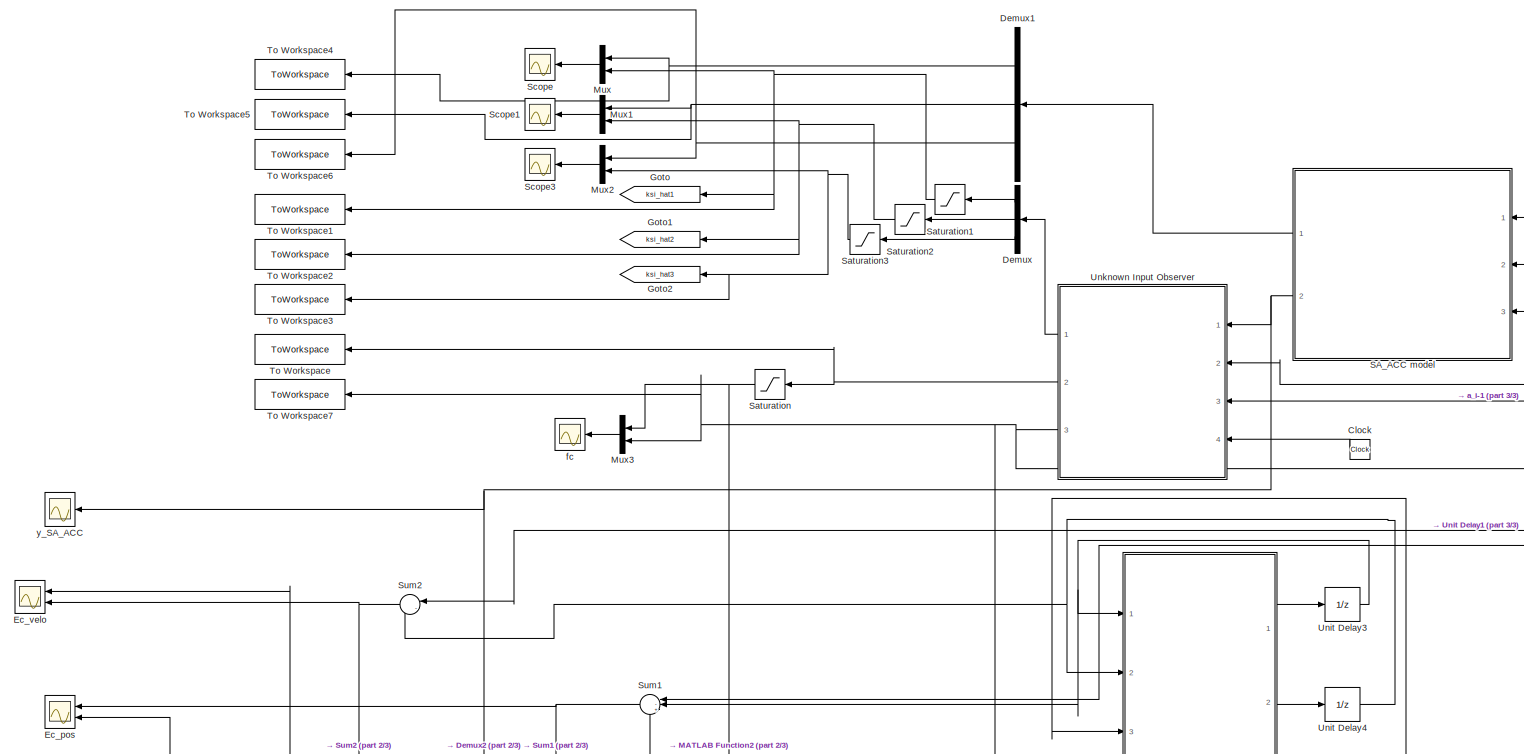
[diagram: root canvas - part 1/3, full width, top band]
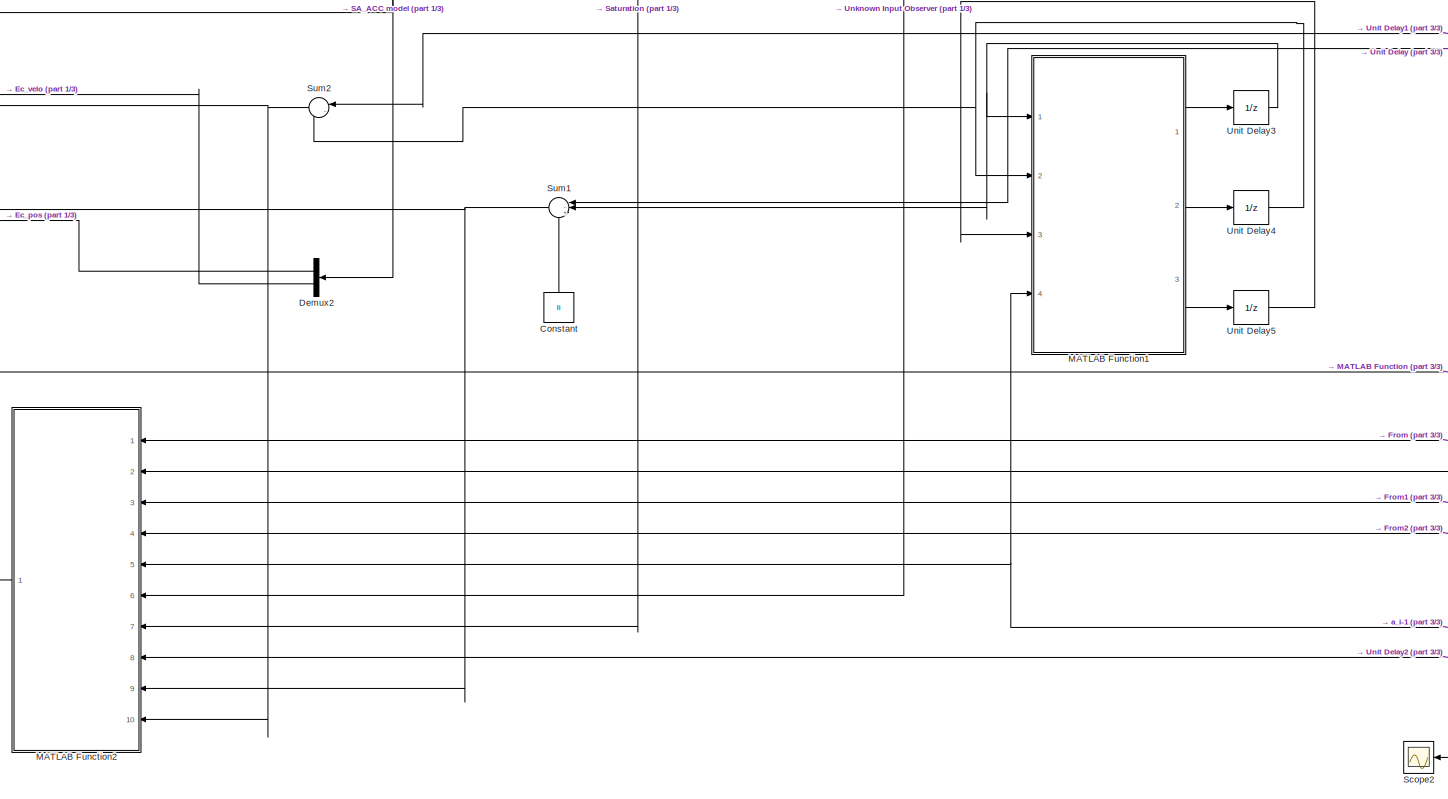
[diagram: root canvas - part 2/3, bottom center region]
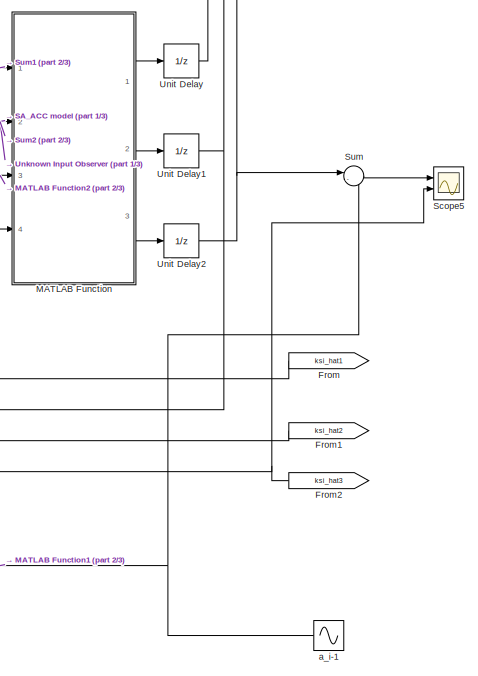
[diagram: root canvas - part 3/3, bottom right region]
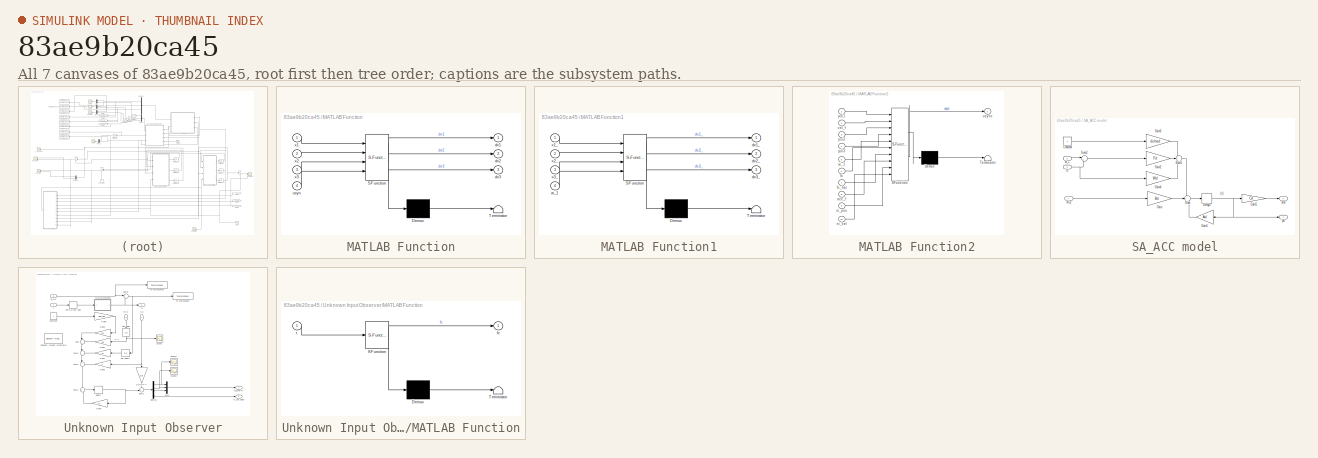
[diagram: thumbnail index - all 7 canvases of the model, root first then tree order]
MODEL slx_83ae9b20ca45
KIND model
CONFIG AbsTol = auto
CONFIG EnableMultiTasking = off
CONFIG FixedStep = 0.01
CONFIG MaxStep = auto
CONFIG MinStep = auto
CONFIG PreLoadFcn = li = 5;\nLi = 7.3;\nh = 0.5;\nk1 = -0.8;\nk2 = 2.5;\nTs = 0.01;
CONFIG RelTol = 1e-3
CONFIG SampleTimeConstraint = Unconstrained
CONFIG SolverName = FixedStepDiscrete
CONFIG StartTime = 0.0
CONFIG StopTime = 20
BLOCK [Clock] Clock
  NameLocation = top
BLOCK [Constant] Constant
  NameLocation = right
  Value = li
BLOCK [Demux] Demux
  NameLocation = top
  Outputs = 3
  Ports = [1, 3]
BLOCK [Demux] Demux1
  NameLocation = top
  Outputs = 3
  Ports = [1, 3]
BLOCK [Demux] Demux2
  NameLocation = top
  Outputs = 2
  Ports = [1, 2]
BLOCK [Scope] Ec_pos
  Floating = off
  NameLocation = top
  NumInputPorts = 2
  Ports = [2]
  ScopeSpecificationString = Simulink.scopes.TimeScopeBlockCfg('CurrentConfiguration', extmgr.ConfigurationSet(extmgr.Configuration('Core','General UI',true),extmgr.Configuration('Core','Source UI',true),extmgr.Configuration('Sources','WiredSimulink',true,'DataLoggingVariableName','ScopeData1'),extmgr.Configuration('Visuals','Time Domain',true,'SerializedDisplays',{struct('MinYLimReal','-83.92582','MaxYLimReal','19.45731','YL...<+1453ch>
BLOCK [Scope] Ec_velo
  Floating = off
  NameLocation = top
  NumInputPorts = 2
  Ports = [2]
  ScopeSpecificationString = Simulink.scopes.TimeScopeBlockCfg('CurrentConfiguration', extmgr.ConfigurationSet(extmgr.Configuration('Core','General UI',true),extmgr.Configuration('Core','Source UI',true),extmgr.Configuration('Sources','WiredSimulink',true,'DataLoggingVariableName','ScopeData2'),extmgr.Configuration('Visuals','Time Domain',true,'SerializedDisplays',{struct('MinYLimReal','-10.97067','MaxYLimReal','47.97901','YL...<+1453ch>
BLOCK [From] From
  GotoTag = ksi_hat1
BLOCK [From] From1
  GotoTag = ksi_hat2
BLOCK [From] From2
  GotoTag = ksi_hat3
BLOCK [Goto] Goto
  GotoTag = ksi_hat1
BLOCK [Goto] Goto1
  GotoTag = ksi_hat2
BLOCK [Goto] Goto2
  GotoTag = ksi_hat3
BLOCK [SubSystem] MATLAB Function
  ErrorFcn = Stateflow.Translate.translate
  PermitHierarchicalResolution = ExplicitOnly
  Ports = [4, 3]
  RequestExecContextInheritance = off
  SFBlockType = MATLAB Function
  TreatAsAtomicUnit = on
BLOCK [Demux] MATLAB Function/ Demux 
  Outputs = 1
  Ports = [1, 1]
BLOCK [S-Function] MATLAB Function/ SFunction 
  EnableBusSupport = on
  FunctionName = sf_sfun
  PortCounts = [4 4]
  Ports = [4, 4]
  SFcnIsStateOwnerBlock = off
  SFunctionDeploymentMode = off
  Tag = Stateflow S-Function 2
BLOCK [Terminator] MATLAB Function/ Terminator 
BLOCK [Outport] MATLAB Function/dx1
  VectorParamsAs1DForOutWhenUnconnected = off
BLOCK [Outport] MATLAB Function/dx2
  Port = 2
  VectorParamsAs1DForOutWhenUnconnected = off
BLOCK [Outport] MATLAB Function/dx3
  Port = 3
  VectorParamsAs1DForOutWhenUnconnected = off
BLOCK [Inport] MATLAB Function/usyn
  Port = 4
BLOCK [Inport] MATLAB Function/x1
BLOCK [Inport] MATLAB Function/x2
  Port = 2
BLOCK [Inport] MATLAB Function/x3
  Port = 3
BLOCK [SubSystem] MATLAB Function1
  ErrorFcn = Stateflow.Translate.translate
  PermitHierarchicalResolution = ExplicitOnly
  Ports = [4, 3]
  RequestExecContextInheritance = off
  SFBlockType = MATLAB Function
  TreatAsAtomicUnit = on
BLOCK [Demux] MATLAB Function1/ Demux 
  Outputs = 1
  Ports = [1, 1]
BLOCK [S-Function] MATLAB Function1/ SFunction 
  EnableBusSupport = on
  FunctionName = sf_sfun
  PortCounts = [4 4]
  Ports = [4, 4]
  SFcnIsStateOwnerBlock = off
  SFunctionDeploymentMode = off
  Tag = Stateflow S-Function 1
BLOCK [Terminator] MATLAB Function1/ Terminator 
BLOCK [Inport] MATLAB Function1/ai_1
  Port = 4
BLOCK [Outport] MATLAB Function1/dx1_
  VectorParamsAs1DForOutWhenUnconnected = off
BLOCK [Outport] MATLAB Function1/dx2_
  Port = 2
  VectorParamsAs1DForOutWhenUnconnected = off
BLOCK [Outport] MATLAB Function1/dx3_
  Port = 3
  VectorParamsAs1DForOutWhenUnconnected = off
BLOCK [Inport] MATLAB Function1/x1_
BLOCK [Inport] MATLAB Function1/x2_
  Port = 2
BLOCK [Inport] MATLAB Function1/x3_
  Port = 3
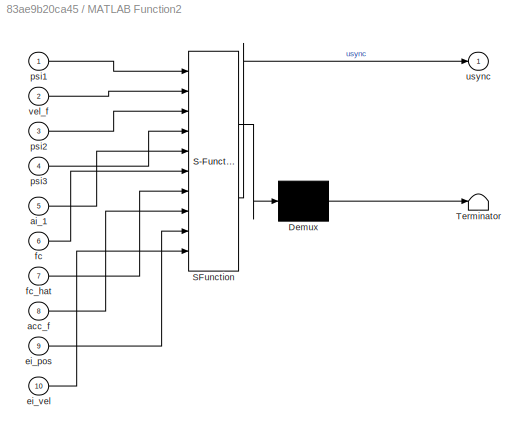
BLOCK [SubSystem] MATLAB Function2
  ErrorFcn = Stateflow.Translate.translate
  NameLocation = top
  PermitHierarchicalResolution = ExplicitOnly
  Ports = [10, 1]
  RequestExecContextInheritance = off
  SFBlockType = MATLAB Function
  TreatAsAtomicUnit = on
BLOCK [Demux] MATLAB Function2/ Demux 
  Outputs = 1
  Ports = [1, 1]
BLOCK [S-Function] MATLAB Function2/ SFunction 
  EnableBusSupport = on
  FunctionName = sf_sfun
  PortCounts = [10 2]
  Ports = [10, 2]
  SFcnIsStateOwnerBlock = off
  SFunctionDeploymentMode = off
  Tag = Stateflow S-Function 3
BLOCK [Terminator] MATLAB Function2/ Terminator 
BLOCK [Inport] MATLAB Function2/acc_f
  Port = 8
BLOCK [Inport] MATLAB Function2/ai_1
  Port = 5
BLOCK [Inport] MATLAB Function2/ei_pos
  Port = 9
BLOCK [Inport] MATLAB Function2/ei_vel
  Port = 10
BLOCK [Inport] MATLAB Function2/fc
  Port = 6
BLOCK [Inport] MATLAB Function2/fc_hat
  Port = 7
BLOCK [Inport] MATLAB Function2/psi1
BLOCK [Inport] MATLAB Function2/psi2
  Port = 3
BLOCK [Inport] MATLAB Function2/psi3
  Port = 4
BLOCK [Outport] MATLAB Function2/usync
  VectorParamsAs1DForOutWhenUnconnected = off
BLOCK [Inport] MATLAB Function2/vel_f
  Port = 2
BLOCK [Mux] Mux
  DisplayOption = bar
  Inputs = 2
  NameLocation = top
  Ports = [2, 1]
BLOCK [Mux] Mux1
  DisplayOption = bar
  Inputs = 2
  NameLocation = top
  Ports = [2, 1]
BLOCK [Mux] Mux2
  DisplayOption = bar
  Inputs = 2
  NameLocation = top
  Ports = [2, 1]
BLOCK [Mux] Mux3
  DisplayOption = bar
  Inputs = 2
  NameLocation = top
  Ports = [2, 1]
BLOCK [SubSystem] SA_ACC model
  Ports = [3, 2]
  RequestExecContextInheritance = off
BLOCK [Constant] SA_ACC model/Constant
BLOCK [Delay] SA_ACC model/Delay3
  DelayLength = 1
  InitialCondition = [5;10;0]
  InputPortMap = u0
  Ports = [1, 1]
BLOCK [Gain] SA_ACC model/Gain
  Gain = Bd
  Multiplication = Matrix(K*u) (u vector)
BLOCK [Gain] SA_ACC model/Gain1
  Gain = Ad
  Multiplication = Matrix(K*u) (u vector)
  NameLocation = top
BLOCK [Gain] SA_ACC model/Gain2
  Gain = Fd
  Multiplication = Matrix(K*u) (u vector)
BLOCK [Gain] SA_ACC model/Gain3
  Gain = deltad
  Multiplication = Matrix(K*u) (u vector)
BLOCK [Gain] SA_ACC model/Gain4
  Gain = Wd
  Multiplication = Matrix(K*u) (u vector)
BLOCK [Gain] SA_ACC model/Gain5
  Gain = Cd
  Multiplication = Matrix(K*u) (u vector)
BLOCK [Sum] SA_ACC model/Sum
  Inputs = +++
  Ports = [3, 1]
BLOCK [Sum] SA_ACC model/Sum1
  Inputs = ++-
  Ports = [3, 1]
BLOCK [Sum] SA_ACC model/Sum2
  Inputs = |++
  Ports = [2, 1]
BLOCK [Inport] SA_ACC model/ai_1
  NameLocation = top
  Port = 2
BLOCK [Inport] SA_ACC model/fc
  NameLocation = top
  Port = 3
BLOCK [Outport] SA_ACC model/psi
  VectorParamsAs1DForOutWhenUnconnected = off
BLOCK [Inport] SA_ACC model/xf(2)
  NameLocation = top
BLOCK [Outport] SA_ACC model/y(k)
  Port = 2
  VectorParamsAs1DForOutWhenUnconnected = off
BLOCK [Saturate] Saturation
  LowerLimit = -10
  UpperLimit = 15
BLOCK [Saturate] Saturation1
  LowerLimit = -20
  UpperLimit = 100
BLOCK [Saturate] Saturation2
  LowerLimit = -20
  UpperLimit = 20
BLOCK [Saturate] Saturation3
  LowerLimit = -20
  UpperLimit = 20
BLOCK [Scope] Scope
  Floating = off
  NameLocation = top
  NumInputPorts = 1
  Ports = [1]
  ScopeSpecificationString = Simulink.scopes.TimeScopeBlockCfg('CurrentConfiguration', extmgr.ConfigurationSet(extmgr.Configuration('Core','General UI',true),extmgr.Configuration('Core','Source UI',true),extmgr.Configuration('Sources','WiredSimulink',true,'DataLoggingVariableName','ScopeData1'),extmgr.Configuration('Visuals','Time Domain',true,'SerializedDisplays',{struct('MinYLimReal','1.38405','MaxYLimReal','12.54231','YLab...<+1476ch>
BLOCK [Scope] Scope1
  Floating = off
  NameLocation = top
  NumInputPorts = 1
  Ports = [1]
  ScopeSpecificationString = Simulink.scopes.TimeScopeBlockCfg('CurrentConfiguration', extmgr.ConfigurationSet(extmgr.Configuration('Core','General UI',true),extmgr.Configuration('Core','Source UI',true),extmgr.Configuration('Sources','WiredSimulink',true,'DataLoggingVariableName','ScopeData3'),extmgr.Configuration('Visuals','Time Domain',true,'SerializedDisplays',{struct('MinYLimReal','-8.03313','MaxYLimReal','15.65588','YLa...<+1460ch>
BLOCK [Scope] Scope2
  Floating = off
  NameLocation = top
  NumInputPorts = 1
  Ports = [1]
  ScopeSpecificationString = Simulink.scopes.TimeScopeBlockCfg('CurrentConfiguration', extmgr.ConfigurationSet(extmgr.Configuration('Core','General UI',true),extmgr.Configuration('Core','Source UI',true),extmgr.Configuration('Sources','WiredSimulink',true,'DataLoggingVariableName','ScopeData2'),extmgr.Configuration('Visuals','Time Domain',true,'SerializedDisplays',{struct('MinYLimReal','-11.12279','MaxYLimReal','71.73274','YL...<+1454ch>
BLOCK [Scope] Scope3
  Floating = off
  NameLocation = top
  NumInputPorts = 1
  Ports = [1]
  ScopeSpecificationString = Simulink.scopes.TimeScopeBlockCfg('CurrentConfiguration', extmgr.ConfigurationSet(extmgr.Configuration('Core','General UI',true),extmgr.Configuration('Core','Source UI',true),extmgr.Configuration('Sources','WiredSimulink',true,'DataLoggingVariableName','ScopeData4'),extmgr.Configuration('Visuals','Time Domain',true,'SerializedDisplays',{struct('MinYLimReal','-25.00000','MaxYLimReal','25.00000','YL...<+1461ch>
BLOCK [Scope] Scope5
  Floating = off
  NumInputPorts = 2
  Ports = [2]
  ScopeSpecificationString = Simulink.scopes.TimeScopeBlockCfg('CurrentConfiguration', extmgr.ConfigurationSet(extmgr.Configuration('Core','General UI',true),extmgr.Configuration('Core','Source UI',true),extmgr.Configuration('Sources','WiredSimulink',true,'DataLoggingVariableName','ScopeData1'),extmgr.Configuration('Visuals','Time Domain',true,'SerializedDisplays',{struct('MinYLimReal','-25.00000','MaxYLimReal','25.00000','YL...<+1440ch>
BLOCK [Sum] Sum
  Inputs = |-+
  Ports = [2, 1]
BLOCK [Sum] Sum1
  Inputs = |-+-
  NameLocation = top
  Ports = [3, 1]
BLOCK [Sum] Sum2
  Inputs = |-+
  NameLocation = top
  Ports = [2, 1]
BLOCK [ToWorkspace] To Workspace
  FixptAsFi = on
  MaxDataPoints = inf
  NameLocation = top
  Ports = [1]
  SampleTime = -1
  SaveFormat = Timeseries
  VariableName = fc_est
BLOCK [ToWorkspace] To Workspace1
  FixptAsFi = on
  MaxDataPoints = inf
  NameLocation = top
  Ports = [1]
  SampleTime = -1
  SaveFormat = Timeseries
  VariableName = psi_est_1
BLOCK [ToWorkspace] To Workspace2
  FixptAsFi = on
  MaxDataPoints = inf
  NameLocation = top
  Ports = [1]
  SampleTime = -1
  SaveFormat = Timeseries
  VariableName = psi_est_2
BLOCK [ToWorkspace] To Workspace3
  FixptAsFi = on
  MaxDataPoints = inf
  NameLocation = top
  Ports = [1]
  SampleTime = -1
  SaveFormat = Timeseries
  VariableName = psi_est_3
BLOCK [ToWorkspace] To Workspace4
  FixptAsFi = on
  MaxDataPoints = inf
  NameLocation = top
  Ports = [1]
  SampleTime = -1
  SaveFormat = Timeseries
  VariableName = psi_1
BLOCK [ToWorkspace] To Workspace5
  FixptAsFi = on
  MaxDataPoints = inf
  NameLocation = top
  Ports = [1]
  SampleTime = -1
  SaveFormat = Timeseries
  VariableName = psi_2
BLOCK [ToWorkspace] To Workspace6
  FixptAsFi = on
  MaxDataPoints = inf
  NameLocation = top
  Ports = [1]
  SampleTime = -1
  SaveFormat = Timeseries
  VariableName = psi_3
BLOCK [ToWorkspace] To Workspace7
  FixptAsFi = on
  MaxDataPoints = inf
  NameLocation = top
  Ports = [1]
  SampleTime = -1
  SaveFormat = Timeseries
  VariableName = fc
BLOCK [UnitDelay] Unit Delay
  HasFrameUpgradeWarning = on
  SampleTime = -1
BLOCK [UnitDelay] Unit Delay1
  HasFrameUpgradeWarning = on
  SampleTime = -1
BLOCK [UnitDelay] Unit Delay2
  HasFrameUpgradeWarning = on
  SampleTime = -1
BLOCK [UnitDelay] Unit Delay3
  HasFrameUpgradeWarning = on
  InitialCondition = 10
  SampleTime = -1
BLOCK [UnitDelay] Unit Delay4
  HasFrameUpgradeWarning = on
  InitialCondition = 10
  SampleTime = -1
BLOCK [UnitDelay] Unit Delay5
  HasFrameUpgradeWarning = on
  SampleTime = -1
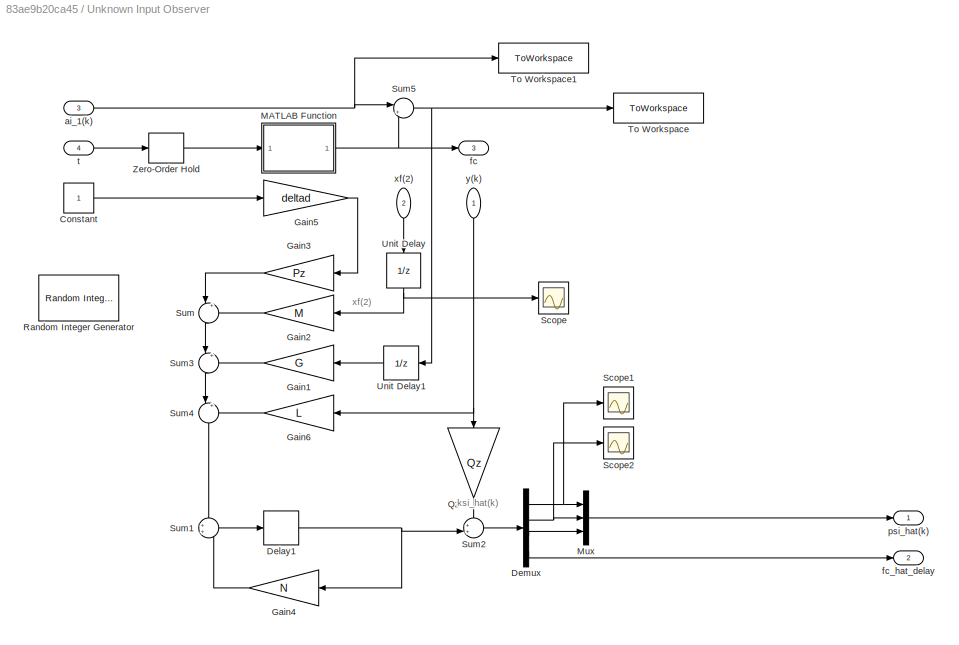
BLOCK [SubSystem] Unknown Input Observer
  NameLocation = top
  Ports = [4, 3]
  RequestExecContextInheritance = off
BLOCK [Constant] Unknown Input Observer/Constant
BLOCK [Delay] Unknown Input Observer/Delay1
  DelayLength = 1
  InitialCondition = [0;0;0;0]
  InputPortMap = u0
  Ports = [1, 1]
BLOCK [Demux] Unknown Input Observer/Demux
  Ports = [1, 4]
BLOCK [Gain] Unknown Input Observer/Gain1
  Gain = G
  Multiplication = Matrix(K*u) (u vector)
  NameLocation = top
BLOCK [Gain] Unknown Input Observer/Gain2
  Gain = M
  Multiplication = Matrix(K*u) (u vector)
  NameLocation = top
BLOCK [Gain] Unknown Input Observer/Gain3
  Gain = Pz
  Multiplication = Matrix(K*u) (u vector)
  NameLocation = top
BLOCK [Gain] Unknown Input Observer/Gain4
  Gain = N
  Multiplication = Matrix(K*u) (u vector)
  NameLocation = top
BLOCK [Gain] Unknown Input Observer/Gain5
  Gain = deltad
  Multiplication = Matrix(K*u) (u vector)
BLOCK [Gain] Unknown Input Observer/Gain6
  Gain = L
  Multiplication = Matrix(K*u) (u vector)
  NameLocation = top
BLOCK [SubSystem] Unknown Input Observer/MATLAB Function
  ErrorFcn = Stateflow.Translate.translate
  PermitHierarchicalResolution = ExplicitOnly
  Ports = [1, 1]
  RequestExecContextInheritance = off
  SFBlockType = MATLAB Function
  TreatAsAtomicUnit = on
BLOCK [Demux] Unknown Input Observer/MATLAB Function/ Demux 
  Outputs = 1
  Ports = [1, 1]
BLOCK [S-Function] Unknown Input Observer/MATLAB Function/ SFunction 
  EnableBusSupport = on
  FunctionName = sf_sfun
  PortCounts = [1 2]
  Ports = [1, 2]
  SFcnIsStateOwnerBlock = off
  SFunctionDeploymentMode = off
  Tag = Stateflow S-Function 4
BLOCK [Terminator] Unknown Input Observer/MATLAB Function/ Terminator 
BLOCK [Outport] Unknown Input Observer/MATLAB Function/fc
  VectorParamsAs1DForOutWhenUnconnected = off
BLOCK [Inport] Unknown Input Observer/MATLAB Function/t
BLOCK [Mux] Unknown Input Observer/Mux
  DisplayOption = bar
  Inputs = 3
  Ports = [3, 1]
BLOCK [Gain] Unknown Input Observer/Qz
  Gain = Qz
  Multiplication = Matrix(K*u) (u vector)
  NameLocation = left
BLOCK [Reference] Unknown Input Observer/Random Integer Generator  REF=commrandsrc3/Random Integer
Generator
  Commented = on
  Ports = [0, 1]
  SourceBlock = commrandsrc3/Random Integer\nGenerator
  SourceProductBaseCode = CM
  SourceType = Random Integer Generator
BLOCK [Scope] Unknown Input Observer/Scope
  Floating = off
  NumInputPorts = 1
  Ports = [1]
  ScopeSpecificationString = Simulink.scopes.TimeScopeBlockCfg('CurrentConfiguration', extmgr.ConfigurationSet(extmgr.Configuration('Core','General UI',true),extmgr.Configuration('Core','Source UI',true),extmgr.Configuration('Sources','WiredSimulink',true,'DataLoggingVariableName','ScopeData1'),extmgr.Configuration('Visuals','Time Domain',true,'SerializedDisplays',{struct('MinYLimReal','-1.00000','MaxYLimReal','1.00000','YLab...<+1394ch>
BLOCK [Scope] Unknown Input Observer/Scope1
  Floating = off
  NumInputPorts = 1
  Ports = [1]
  ScopeSpecificationString = Simulink.scopes.TimeScopeBlockCfg('CurrentConfiguration', extmgr.ConfigurationSet(extmgr.Configuration('Core','General UI',true),extmgr.Configuration('Core','Source UI',true),extmgr.Configuration('Sources','WiredSimulink',true,'DataLoggingVariableName','ScopeData2'),extmgr.Configuration('Visuals','Time Domain',true,'SerializedDisplays',{struct('MinYLimReal','-6.18008','MaxYLimReal','10.60947','YLa...<+1428ch>
BLOCK [Scope] Unknown Input Observer/Scope2
  Floating = off
  NumInputPorts = 1
  Ports = [1]
  ScopeSpecificationString = Simulink.scopes.TimeScopeBlockCfg('CurrentConfiguration', extmgr.ConfigurationSet(extmgr.Configuration('Core','General UI',true),extmgr.Configuration('Core','Source UI',true),extmgr.Configuration('Sources','WiredSimulink',true,'DataLoggingVariableName','ScopeData3'),extmgr.Configuration('Visuals','Time Domain',true,'SerializedDisplays',{struct('MinYLimReal','-6.67873','MaxYLimReal','15.56931','YLa...<+1395ch>
BLOCK [Sum] Unknown Input Observer/Sum
  Inputs = |++
  NameLocation = left
  Ports = [2, 1]
BLOCK [Sum] Unknown Input Observer/Sum1
  Ports = [2, 1]
BLOCK [Sum] Unknown Input Observer/Sum2
  Inputs = ++|
  Ports = [2, 1]
BLOCK [Sum] Unknown Input Observer/Sum3
  Inputs = |++
  NameLocation = left
  Ports = [2, 1]
BLOCK [Sum] Unknown Input Observer/Sum4
  Inputs = |++
  NameLocation = left
  Ports = [2, 1]
BLOCK [Sum] Unknown Input Observer/Sum5
  Inputs = |++
  Ports = [2, 1]
BLOCK [ToWorkspace] Unknown Input Observer/To Workspace
  FixptAsFi = on
  MaxDataPoints = inf
  Ports = [1]
  SampleTime = -1
  SaveFormat = Timeseries
  VariableName = mu
BLOCK [ToWorkspace] Unknown Input Observer/To Workspace1
  FixptAsFi = on
  MaxDataPoints = inf
  Ports = [1]
  SampleTime = -1
  SaveFormat = Timeseries
  VariableName = a_pre
BLOCK [UnitDelay] Unknown Input Observer/Unit Delay
  HasFrameUpgradeWarning = on
  NameLocation = left
  SampleTime = -1
BLOCK [UnitDelay] Unknown Input Observer/Unit Delay1
  HasFrameUpgradeWarning = on
  NameLocation = top
  SampleTime = -1
BLOCK [ZeroOrderHold] Unknown Input Observer/Zero-Order Hold
  SampleTime = -1
BLOCK [Inport] Unknown Input Observer/ai_1(k)
  NameLocation = top
  Port = 3
BLOCK [Outport] Unknown Input Observer/fc
  Port = 3
  VectorParamsAs1DForOutWhenUnconnected = off
BLOCK [Outport] Unknown Input Observer/fc_hat_delay
  Port = 2
  VectorParamsAs1DForOutWhenUnconnected = off
BLOCK [Outport] Unknown Input Observer/psi_hat(k)
  VectorParamsAs1DForOutWhenUnconnected = off
BLOCK [Inport] Unknown Input Observer/t
  Port = 4
BLOCK [Inport] Unknown Input Observer/xf(2)
  NameLocation = left
  Port = 2
BLOCK [Inport] Unknown Input Observer/y(k)
  NameLocation = left
BLOCK [Sin] a_i-1
  Amplitude = 3
  Frequency = 2*pi/10
  NameLocation = top
  Ports = [0, 1]
  SampleTime = Ts
BLOCK [Scope] fc
  Floating = off
  NameLocation = top
  NumInputPorts = 1
  Ports = [1]
  ScopeSpecificationString = Simulink.scopes.TimeScopeBlockCfg('CurrentConfiguration', extmgr.ConfigurationSet(extmgr.Configuration('Core','General UI',true),extmgr.Configuration('Core','Source UI',true),extmgr.Configuration('Sources','WiredSimulink',true,'DataLoggingVariableName','ScopeData5'),extmgr.Configuration('Visuals','Time Domain',true,'SerializedDisplays',{struct('MinYLimReal','-13.125','MaxYLimReal','18.125','YLabel...<+1464ch>
BLOCK [Scope] y_SA_ACC
  Floating = off
  NameLocation = top
  NumInputPorts = 1
  Ports = [1]
  ScopeSpecificationString = Simulink.scopes.TimeScopeBlockCfg('CurrentConfiguration', extmgr.ConfigurationSet(extmgr.Configuration('Core','General UI',true),extmgr.Configuration('Core','Source UI',true),extmgr.Configuration('Sources','WiredSimulink',true,'DataLoggingVariableName','ScopeData4'),extmgr.Configuration('Visuals','Time Domain',true,'SerializedDisplays',{struct('MinYLimReal','-6.96016','MaxYLimReal','11.88446','YLa...<+1471ch>
ANNOTATION SA_ACC model: x(k)
ANNOTATION Unknown Input Observer: ksi_hat(k)
ANNOTATION Unknown Input Observer: xf(2)
LINE Clock:1 -> Unknown Input Observer:4
LINE Constant:1 -> Sum1:3
NET Demux1:1 -> Mux:1, To Workspace4:1
NET Demux1:2 -> Mux1:1, To Workspace5:1
NET Demux1:3 -> Mux2:1, To Workspace6:1
LINE Demux2:1 -> Ec_pos:2
LINE Demux2:2 -> Ec_velo:1
LINE Demux:1 -> Saturation1:1
LINE Demux:2 -> Saturation2:1
LINE Demux:3 -> Saturation3:1
LINE From1:1 -> MATLAB Function2:3
NET From2:1 -> MATLAB Function2:4, Scope5:2
LINE From:1 -> MATLAB Function2:1
LINE MATLAB Function1:1 -> Unit Delay3:1
LINE MATLAB Function1:2 -> Unit Delay4:1
LINE MATLAB Function1:3 -> Unit Delay5:1
NET MATLAB Function2:1 -> MATLAB Function:4, Scope2:1
LINE MATLAB Function:1 -> Unit Delay:1
LINE MATLAB Function:2 -> Unit Delay1:1
LINE MATLAB Function:3 -> Unit Delay2:1
LINE Mux1:1 -> Scope1:1
LINE Mux2:1 -> Scope3:1
LINE Mux3:1 -> fc:1
LINE Mux:1 -> Scope:1
LINE SA_ACC model/Constant:1 -> SA_ACC model/Gain3:1
NET SA_ACC model/Delay3:1 -> SA_ACC model/Gain1:1, SA_ACC model/Gain5:1, SA_ACC model/psi:1
LINE SA_ACC model/Gain1:1 -> SA_ACC model/Sum:3
LINE SA_ACC model/Gain2:1 -> SA_ACC model/Sum1:2
LINE SA_ACC model/Gain3:1 -> SA_ACC model/Sum1:1
LINE SA_ACC model/Gain4:1 -> SA_ACC model/Sum1:3
LINE SA_ACC model/Gain5:1 -> SA_ACC model/y(k):1
LINE SA_ACC model/Gain:1 -> SA_ACC model/Sum:2
LINE SA_ACC model/Sum1:1 -> SA_ACC model/Sum:1
LINE SA_ACC model/Sum2:1 -> SA_ACC model/Gain2:1
LINE SA_ACC model/Sum:1 -> SA_ACC model/Delay3:1
LINE SA_ACC model/ai_1:1 -> SA_ACC model/Sum2:1
NET SA_ACC model/fc:1 -> SA_ACC model/Gain4:1, SA_ACC model/Sum2:2
LINE SA_ACC model/xf(2):1 -> SA_ACC model/Gain:1
LINE SA_ACC model:1 -> Demux1:1
NET SA_ACC model:2 -> Demux2:1, Unknown Input Observer:1, y_SA_ACC:1
NET Saturation1:1 -> Goto:1, Mux:2, To Workspace1:1
NET Saturation2:1 -> Goto1:1, Mux1:2, To Workspace2:1
NET Saturation3:1 -> Goto2:1, Mux2:2, To Workspace3:1
NET Saturation:1 -> MATLAB Function2:7, Mux3:1
NET Sum1:1 -> Ec_pos:1, MATLAB Function2:9
NET Sum2:1 -> Ec_velo:2, MATLAB Function2:10
LINE Sum:1 -> Scope5:1
NET Unit Delay1:1 -> MATLAB Function2:2, MATLAB Function:2, SA_ACC model:1, Sum2:1, Unknown Input Observer:2
NET Unit Delay2:1 -> MATLAB Function2:8, MATLAB Function:3, Sum:1
NET Unit Delay3:1 -> MATLAB Function1:1, Sum1:2
NET Unit Delay4:1 -> MATLAB Function1:2, Sum2:2
LINE Unit Delay5:1 -> MATLAB Function1:3
NET Unit Delay:1 -> MATLAB Function:1, Sum1:1
LINE Unknown Input Observer/Constant:1 -> Unknown Input Observer/Gain5:1
NET Unknown Input Observer/Delay1:1 -> Unknown Input Observer/Gain4:1, Unknown Input Observer/Sum2:2
NET Unknown Input Observer/Demux:1 -> Unknown Input Observer/Mux:1, Unknown Input Observer/Scope1:1
NET Unknown Input Observer/Demux:2 -> Unknown Input Observer/Mux:2, Unknown Input Observer/Scope2:1
LINE Unknown Input Observer/Demux:3 -> Unknown Input Observer/Mux:3
LINE Unknown Input Observer/Demux:4 -> Unknown Input Observer/fc_hat_delay:1
LINE Unknown Input Observer/Gain1:1 -> Unknown Input Observer/Sum3:2
LINE Unknown Input Observer/Gain2:1 -> Unknown Input Observer/Sum:2
LINE Unknown Input Observer/Gain3:1 -> Unknown Input Observer/Sum:1
LINE Unknown Input Observer/Gain4:1 -> Unknown Input Observer/Sum1:2
LINE Unknown Input Observer/Gain5:1 -> Unknown Input Observer/Gain3:1
LINE Unknown Input Observer/Gain6:1 -> Unknown Input Observer/Sum4:2
NET Unknown Input Observer/MATLAB Function:1 -> Unknown Input Observer/Sum5:2, Unknown Input Observer/fc:1
LINE Unknown Input Observer/Mux:1 -> Unknown Input Observer/psi_hat(k):1
LINE Unknown Input Observer/Qz:1 -> Unknown Input Observer/Sum2:1
LINE Unknown Input Observer/Sum1:1 -> Unknown Input Observer/Delay1:1
LINE Unknown Input Observer/Sum2:1 -> Unknown Input Observer/Demux:1
LINE Unknown Input Observer/Sum3:1 -> Unknown Input Observer/Sum4:1
LINE Unknown Input Observer/Sum4:1 -> Unknown Input Observer/Sum1:1
NET Unknown Input Observer/Sum5:1 -> Unknown Input Observer/To Workspace:1, Unknown Input Observer/Unit Delay1:1
LINE Unknown Input Observer/Sum:1 -> Unknown Input Observer/Sum3:1
LINE Unknown Input Observer/Unit Delay1:1 -> Unknown Input Observer/Gain1:1
NET Unknown Input Observer/Unit Delay:1 -> Unknown Input Observer/Gain2:1, Unknown Input Observer/Scope:1
LINE Unknown Input Observer/Zero-Order Hold:1 -> Unknown Input Observer/MATLAB Function:1
NET Unknown Input Observer/ai_1(k):1 -> Unknown Input Observer/Sum5:1, Unknown Input Observer/To Workspace1:1
LINE Unknown Input Observer/t:1 -> Unknown Input Observer/Zero-Order Hold:1
LINE Unknown Input Observer/xf(2):1 -> Unknown Input Observer/Unit Delay:1
NET Unknown Input Observer/y(k):1 -> Unknown Input Observer/Gain6:1, Unknown Input Observer/Qz:1
LINE Unknown Input Observer:1 -> Demux:1
NET Unknown Input Observer:2 -> Saturation:1, To Workspace:1
NET Unknown Input Observer:3 -> MATLAB Function2:6, Mux3:2, SA_ACC model:3, To Workspace7:1
NET a_i-1:1 -> MATLAB Function1:4, MATLAB Function2:5, SA_ACC model:2, Sum:2, Unknown Input Observer:3
note: NET lines group one-source signal fan-out (src -> all destinations, sorted); 1:1 wires keep LINE
CHART MATLAB Function1 states=1 transitions=1
  STATE_LABEL 'eML_blk_kernel()'
  STATE_LABEL 'SCRIPT:\nfunction [dx1_,dx2_,dx3_] = preceeding(x1_,x2_,x3_,ai_1)\n\n\nTs = 1/100;\n\nAi_ = [1 Ts 0;\n       0 1 0;\n       0 0 1];\n\n\n\ndx1_ = Ai_(1,:)*[x1_;x2_;x3_];\ndx2_ = Ai_(2,:)*[x1_;x2_;x3_]+Ts*ai_1;\ndx3_ = Ai_(3,:)*[x1_;x2_;x3_] ;\n\n'
CHART MATLAB Function states=1 transitions=1
  STATE_LABEL 'eML_blk_kernel()'
  STATE_LABEL 'SCRIPT:\nfunction [dx1,dx2,dx3] = following(x1,x2,x3,usyn)\n\n\nTs = 1/100;\ntau = 0.4;\n\nAi = [1 Ts 0;0 1 Ts;0 0 1-Ts/tau];\n\n% x = [x1;x2;x3];\ndx1 = Ai(1,:)*[x1;x2;x3];\ndx2 = Ai(2,:)*[x1;x2;x3];\ndx3 = Ai(3,:)*[x1;x2;x3]+Ts/tau*usyn ;\n\n% dx = Ai*x;\n% dx1 = dx(1,:)\n% dx2 = dx(2,:)\n% dx3 = dx(3,:)*[x1;x2;x3]+Ts/tau*usyn;\n\n'
CHART MATLAB Function2 states=1 transitions=1
  STATE_LABEL 'eML_blk_kernel()'
  STATE_LABEL 'SCRIPT:\n function usync = control(psi1,vel_f,psi2,psi3,ai_1,fc,fc_hat,acc_f,ei_pos,ei_vel)\n\npersistent frame \n\nif isempty(frame)\n    frame = 0;\nend\nTs = 1/100;\ntau = 0.4;\n\n\nli = 5;\nLi = 8;\nh = 0.5;\nk1 = -0.8;\nk2 = 2.5;\n\na1 = h*k1*k2;\na2 = -k2;\nb1 = -(k1+h*k1*k2);\nk3 = (1-h*k1*k2);\nb3 = k2/h;\nc = -k2/h*(Li-li);\n\nmu = (ai_1+fc);\nusync = h*k1*k2*mu-(k1+h*k1*k2)*fc_hat-k2*vel_f-(k1+h*k1*k2)*(psi3)...\n...<+436ch>'
CHART Unknown Input Observer/MATLAB Function states=1 transitions=1
  STATE_LABEL 'eML_blk_kernel()'
  STATE_LABEL 'SCRIPT:\nfunction fc = attack(t)\n\n% %% Case linear attaack\n    if (t < 6)\n        fc = 0;\n    elseif (t >=6 && t<12)\n        %%# print(time_eslap)\n        fc = 2*(t - 4);\n%     elseif (t>=9 && t<16)\n%         fc = 5;\n    else\n        fc = 5;\n    end\n%     \n%% Case linear attaack\n%     fc = 5;\n%% Case bla bla \n%     if t<4\n%         fc = 0;\n%     elseif t >=4 && t<8\n%         fc = 10*sin(10*pi/2*t)*...<+393ch>'
CHART  states=0 transitions=0
CHART  states=0 transitions=0
CHART  states=0 transitions=0
CHART  states=0 transitions=0
